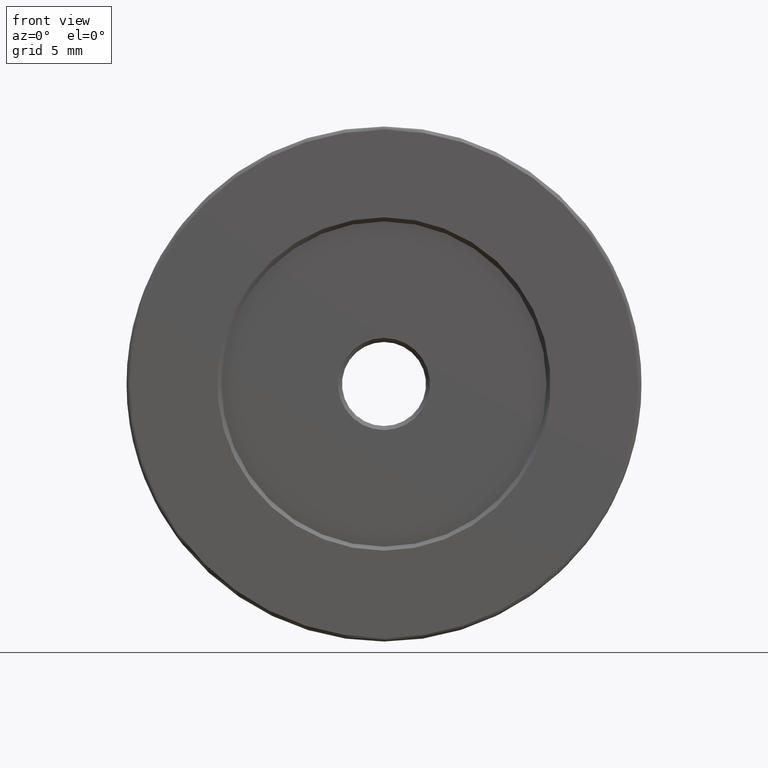
[diagram: clean part render]
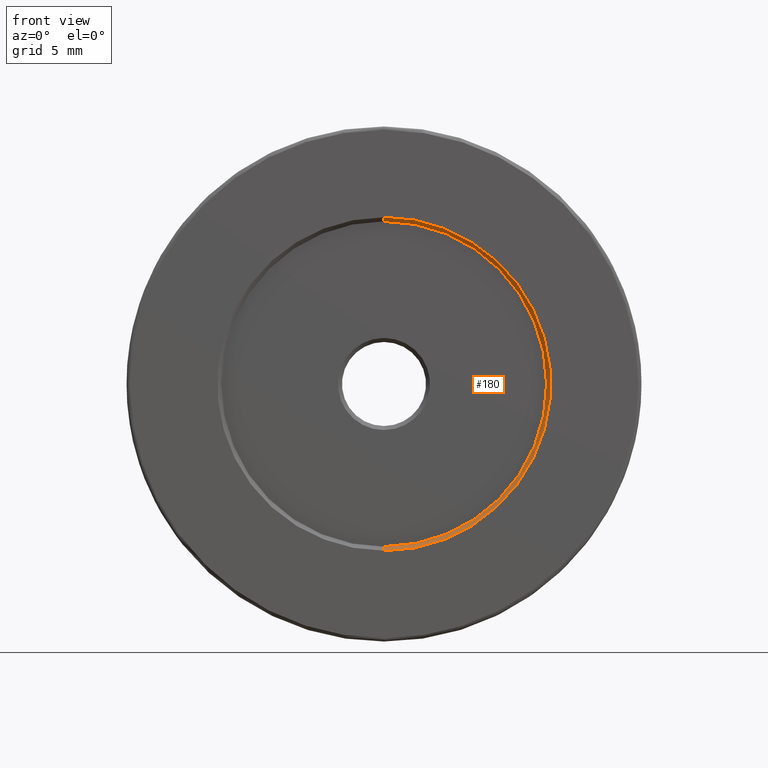
[diagram: same view with one face highlighted and labeled with its STEP entity id]
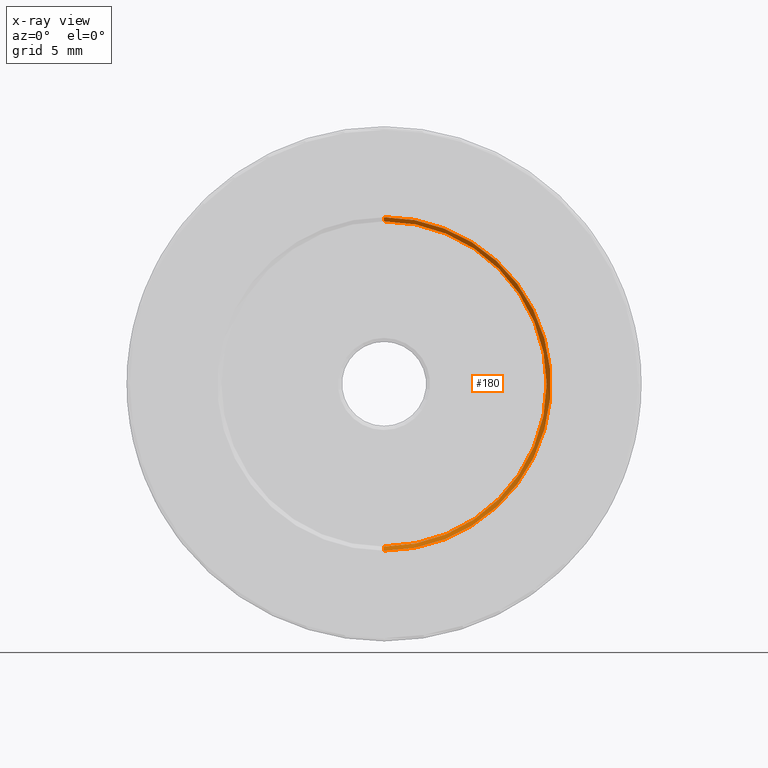
[diagram: x-ray of the same camera — body ghosted, the highlighted face saturated]
A machine part, front view. The second image highlights one B-rep face of the part: STEP entity #180.
The next image is the same camera in x-ray: the body ghosted, the highlighted face saturated — about 0% of this face is hidden behind the body in this view.
In plain terms, the highlighted conical surface has half-angle 45 deg.
Its self-contained STEP definition (entity closure, byte-faithful):
#14 = LINE ( 'NONE', #202, #593 ) ;
#32 = VERTEX_POINT ( 'NONE', #58 ) ;
#43 = ORIENTED_EDGE ( 'NONE', *, *, #580, .F. ) ;
#50 = EDGE_CURVE ( 'NONE', #240, #474, #102, .T. ) ;
#58 = CARTESIAN_POINT ( 'NONE',  ( -7.546808913101048510, -5.393595127302728720, 25.69999999999998508 ) ) ;
#60 = DIRECTION ( 'NONE',  ( 0.000000000000000000, 1.000000000000000000, 0.000000000000000000 ) ) ;
#79 = AXIS2_PLACEMENT_3D ( 'NONE', #261, #60, #448 ) ;
#102 = CIRCLE ( 'NONE', #186, 12.00000000000000355 ) ;
#124 = EDGE_LOOP ( 'NONE', ( #238, #226, #287, #43 ) ) ;
#151 = FACE_OUTER_BOUND ( 'NONE', #124, .T. ) ;
#153 = DIRECTION ( 'NONE',  ( 0.000000000000000000, 0.000000000000000000, 1.000000000000000000 ) ) ;
#154 = DIRECTION ( 'NONE',  ( -0.000000000000000000, -1.000000000000000000, -0.000000000000000000 ) ) ;
#159 = DIRECTION ( 'NONE',  ( 0.000000000000000000, 0.000000000000000000, -1.000000000000000000 ) ) ;
#180 = ADVANCED_FACE ( 'NONE', ( #151 ), #188, .F. ) ;
#186 = AXIS2_PLACEMENT_3D ( 'NONE', #295, #262, #153 ) ;
#188 = CONICAL_SURFACE ( 'NONE', #198, 12.30000000000001315, 0.7853981633974453924 ) ;
#198 = AXIS2_PLACEMENT_3D ( 'NONE', #546, #154, #159 ) ;
#202 = CARTESIAN_POINT ( 'NONE',  ( -7.546808913101046734, -5.393595127302728720, 50.30000000000001137 ) ) ;
#224 = CARTESIAN_POINT ( 'NONE',  ( -7.546808913101046734, -5.093595127302728898, 50.00000000000000000 ) ) ;
#226 = ORIENTED_EDGE ( 'NONE', *, *, #50, .T. ) ;
#238 = ORIENTED_EDGE ( 'NONE', *, *, #513, .F. ) ;
#240 = VERTEX_POINT ( 'NONE', #224 ) ;
#243 = CARTESIAN_POINT ( 'NONE',  ( -7.546808913101048510, -5.093595127302728898, 25.99999999999999645 ) ) ;
#255 = DIRECTION ( 'NONE',  ( 0.000000000000000000, -0.7071067811865495711, -0.7071067811865454633 ) ) ;
#261 = CARTESIAN_POINT ( 'NONE',  ( -7.546808913101048510, -5.393595127302728720, 38.00000000000000000 ) ) ;
#262 = DIRECTION ( 'NONE',  ( -0.000000000000000000, 1.000000000000000000, -0.000000000000000000 ) ) ;
#287 = ORIENTED_EDGE ( 'NONE', *, *, #449, .T. ) ;
#295 = CARTESIAN_POINT ( 'NONE',  ( -7.546808913101048510, -5.093595127302728898, 38.00000000000000000 ) ) ;
#298 = CIRCLE ( 'NONE', #79, 12.30000000000001315 ) ;
#336 = VERTEX_POINT ( 'NONE', #383 ) ;
#341 = VECTOR ( 'NONE', #255, 1000.000000000000000 ) ;
#383 = CARTESIAN_POINT ( 'NONE',  ( -7.546808913101046734, -5.393595127302728720, 50.30000000000001137 ) ) ;
#438 = LINE ( 'NONE', #473, #341 ) ;
#448 = DIRECTION ( 'NONE',  ( 0.000000000000000000, 0.000000000000000000, 1.000000000000000000 ) ) ;
#449 = EDGE_CURVE ( 'NONE', #474, #32, #438, .T. ) ;
#473 = CARTESIAN_POINT ( 'NONE',  ( -7.546808913101048510, -5.393595127302728720, 25.69999999999998508 ) ) ;
#474 = VERTEX_POINT ( 'NONE', #243 ) ;
#513 = EDGE_CURVE ( 'NONE', #240, #336, #14, .T. ) ;
#546 = CARTESIAN_POINT ( 'NONE',  ( -7.546808913101048510, -5.393595127302728720, 38.00000000000000000 ) ) ;
#566 = DIRECTION ( 'NONE',  ( 8.659560562354908206E-17, -0.7071067811865495711, 0.7071067811865454633 ) ) ;
#580 = EDGE_CURVE ( 'NONE', #336, #32, #298, .T. ) ;
#593 = VECTOR ( 'NONE', #566, 1000.000000000000000 ) ;